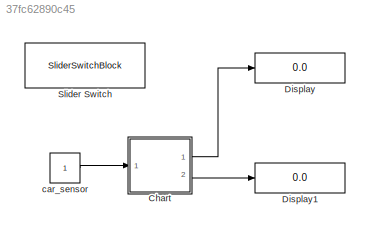
MODEL slx_37fc62890c45
KIND model
CONFIG AbsTol = auto
CONFIG EnableMultiTasking = off
CONFIG FixedStep = auto
CONFIG MaxStep = auto
CONFIG MinStep = auto
CONFIG RelTol = 1e-3
CONFIG SampleTimeConstraint = Unconstrained
CONFIG SolverName = VariableStepAuto
CONFIG StartTime = 0.0
CONFIG StopTime = 10.0
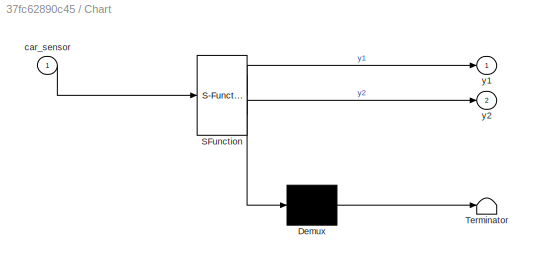
BLOCK [SubSystem] Chart
  ErrorFcn = Stateflow.Translate.translate
  PermitHierarchicalResolution = ExplicitOnly
  Ports = [1, 2]
  RequestExecContextInheritance = off
  SFBlockType = Chart
  TreatAsAtomicUnit = on
BLOCK [Demux] Chart/ Demux 
  Outputs = 1
  Ports = [1, 1]
BLOCK [S-Function] Chart/ SFunction 
  EnableBusSupport = on
  FunctionName = sf_sfun
  PortCounts = [1 3]
  Ports = [1, 3]
  SFcnIsStateOwnerBlock = off
  SFunctionDeploymentMode = off
  Tag = Stateflow S-Function 3
BLOCK [Terminator] Chart/ Terminator 
BLOCK [Inport] Chart/car_sensor
BLOCK [Outport] Chart/y1
BLOCK [Outport] Chart/y2
  Port = 2
BLOCK [Display] Display
  Decimation = 1
  Ports = [1]
BLOCK [Display] Display1
  Decimation = 1
  Ports = [1]
BLOCK [SliderSwitchBlock] Slider Switch
  LabelPosition = Hide
BLOCK [Constant] car_sensor
LINE Chart:1 -> Display:1
LINE Chart:2 -> Display1:1
LINE car_sensor:1 -> Chart:1
CHART Chart states=5 transitions=6
  STATE_LABEL 'Stop\nen:y1=red;\ny2=green;'
  STATE_LABEL 'StopForTraffic\nen:\ny1=red;\ny2=green;'
  STATE_LABEL 'StopToGo\nen:\ny1=red;\ny2=yellow;'
  STATE_LABEL 'GoToStop\nen:\ny1=yellow;\ny2=red;'
  STATE_LABEL 'Go\nen:\ny1=green;\ny2=red;'
CHART  states=0 transitions=0
